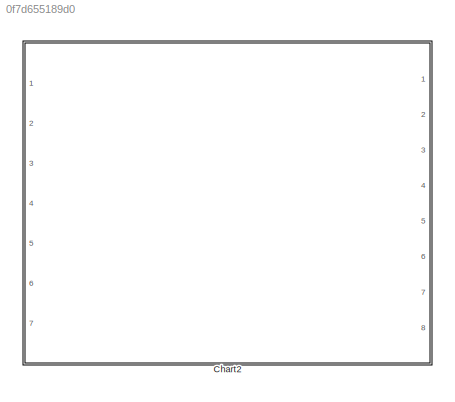
MODEL slx_0f7d655189d0
KIND model
CONFIG AbsTol = auto
CONFIG EnableMultiTasking = off
CONFIG FixedStep = timing.T_optiTask
CONFIG InitFcn = iiwa_joint_trajectoryfollowingcontrol_rigid_parameters;
CONFIG MaxStep = auto
CONFIG MinStep = auto
CONFIG RelTol = 1e-3
CONFIG SampleTimeConstraint = Unconstrained
CONFIG Solver = FixedStepDiscrete
CONFIG SolverName = FixedStepDiscrete
CONFIG StartTime = 0.0
CONFIG StopTime = 10.0
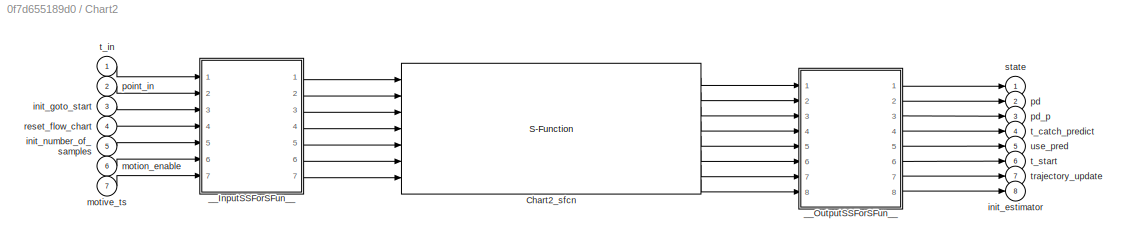
BLOCK [SubSystem] Chart2
  Ports = [7, 8]
  RequestExecContextInheritance = off
BLOCK [S-Function] Chart2/Chart2_sfcn
  CopyFcn = if ~strcmp(get_param(gcb,'Linkstatus'),'none') && ...\n~strcmp(get_param(gcb,'Linkstatus'),'implicit')      \n  set_param(gcb,'LinkStatus','none');                \nend
  EnableBusSupport = off
  FunctionName = Chart2_sf
  Ports = [7, 8]
  SFcnIsStateOwnerBlock = off
  SFunctionDeploymentMode = off
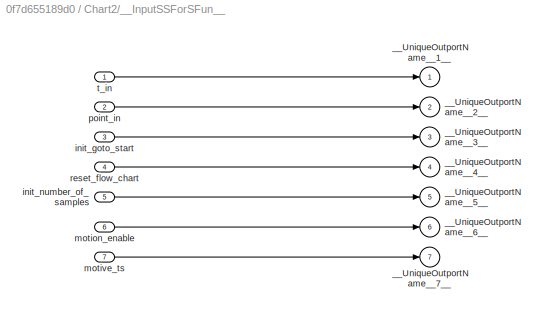
BLOCK [SubSystem] Chart2/__InputSSForSFun__
  PermitHierarchicalResolution = ExplicitOnly
  Ports = [7, 7]
  RequestExecContextInheritance = off
BLOCK [Outport] Chart2/__InputSSForSFun__/__UniqueOutportName__1__
  IconDisplay = Port number
BLOCK [Outport] Chart2/__InputSSForSFun__/__UniqueOutportName__2__
  IconDisplay = Port number
  Port = 2
BLOCK [Outport] Chart2/__InputSSForSFun__/__UniqueOutportName__3__
  IconDisplay = Port number
  Port = 3
BLOCK [Outport] Chart2/__InputSSForSFun__/__UniqueOutportName__4__
  IconDisplay = Port number
  Port = 4
BLOCK [Outport] Chart2/__InputSSForSFun__/__UniqueOutportName__5__
  IconDisplay = Port number
  Port = 5
BLOCK [Outport] Chart2/__InputSSForSFun__/__UniqueOutportName__6__
  IconDisplay = Port number
  Port = 6
BLOCK [Outport] Chart2/__InputSSForSFun__/__UniqueOutportName__7__
  IconDisplay = Port number
  Port = 7
BLOCK [Inport] Chart2/__InputSSForSFun__/init_goto_start
  IconDisplay = Port number
  Port = 3
BLOCK [Inport] Chart2/__InputSSForSFun__/init_number_of_samples
  IconDisplay = Port number
  Port = 5
BLOCK [Inport] Chart2/__InputSSForSFun__/motion_enable
  IconDisplay = Port number
  Port = 6
BLOCK [Inport] Chart2/__InputSSForSFun__/motive_ts
  IconDisplay = Port number
  Port = 7
BLOCK [Inport] Chart2/__InputSSForSFun__/point_in
  IconDisplay = Port number
  Port = 2
BLOCK [Inport] Chart2/__InputSSForSFun__/reset_flow_chart
  IconDisplay = Port number
  Port = 4
BLOCK [Inport] Chart2/__InputSSForSFun__/t_in
  IconDisplay = Port number
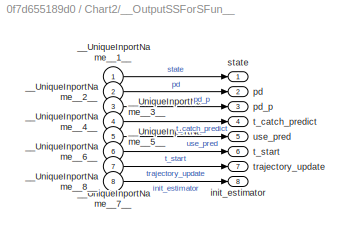
BLOCK [SubSystem] Chart2/__OutputSSForSFun__
  PermitHierarchicalResolution = ExplicitOnly
  Ports = [8, 8]
  RequestExecContextInheritance = off
BLOCK [Inport] Chart2/__OutputSSForSFun__/__UniqueInportName__1__
  IconDisplay = Port number
BLOCK [Inport] Chart2/__OutputSSForSFun__/__UniqueInportName__2__
  IconDisplay = Port number
  Port = 2
BLOCK [Inport] Chart2/__OutputSSForSFun__/__UniqueInportName__3__
  IconDisplay = Port number
  Port = 3
BLOCK [Inport] Chart2/__OutputSSForSFun__/__UniqueInportName__4__
  IconDisplay = Port number
  Port = 4
BLOCK [Inport] Chart2/__OutputSSForSFun__/__UniqueInportName__5__
  IconDisplay = Port number
  Port = 5
BLOCK [Inport] Chart2/__OutputSSForSFun__/__UniqueInportName__6__
  IconDisplay = Port number
  Port = 6
BLOCK [Inport] Chart2/__OutputSSForSFun__/__UniqueInportName__7__
  IconDisplay = Port number
  Port = 7
BLOCK [Inport] Chart2/__OutputSSForSFun__/__UniqueInportName__8__
  IconDisplay = Port number
  Port = 8
BLOCK [Outport] Chart2/__OutputSSForSFun__/init_estimator
  IconDisplay = Port number
  Port = 8
BLOCK [Outport] Chart2/__OutputSSForSFun__/pd
  IconDisplay = Port number
  Port = 2
  VectorParamsAs1DForOutWhenUnconnected = on
BLOCK [Outport] Chart2/__OutputSSForSFun__/pd_p
  IconDisplay = Port number
  Port = 3
  VectorParamsAs1DForOutWhenUnconnected = on
BLOCK [Outport] Chart2/__OutputSSForSFun__/state
  IconDisplay = Port number
  VectorParamsAs1DForOutWhenUnconnected = on
BLOCK [Outport] Chart2/__OutputSSForSFun__/t_catch_predict
  IconDisplay = Port number
  Port = 4
  VectorParamsAs1DForOutWhenUnconnected = on
BLOCK [Outport] Chart2/__OutputSSForSFun__/t_start
  IconDisplay = Port number
  Port = 6
  VectorParamsAs1DForOutWhenUnconnected = on
BLOCK [Outport] Chart2/__OutputSSForSFun__/trajectory_update
  IconDisplay = Port number
  Port = 7
  VectorParamsAs1DForOutWhenUnconnected = on
BLOCK [Outport] Chart2/__OutputSSForSFun__/use_pred
  IconDisplay = Port number
  Port = 5
  VectorParamsAs1DForOutWhenUnconnected = on
BLOCK [Outport] Chart2/init_estimator
  IconDisplay = Port number
  Port = 8
BLOCK [Inport] Chart2/init_goto_start
  IconDisplay = Port number
  Port = 3
BLOCK [Inport] Chart2/init_number_of_samples
  IconDisplay = Port number
  Port = 5
BLOCK [Inport] Chart2/motion_enable
  IconDisplay = Port number
  Port = 6
BLOCK [Inport] Chart2/motive_ts
  IconDisplay = Port number
  Port = 7
BLOCK [Outport] Chart2/pd
  IconDisplay = Port number
  Port = 2
  VectorParamsAs1DForOutWhenUnconnected = on
BLOCK [Outport] Chart2/pd_p
  IconDisplay = Port number
  Port = 3
  VectorParamsAs1DForOutWhenUnconnected = on
BLOCK [Inport] Chart2/point_in
  IconDisplay = Port number
  Port = 2
BLOCK [Inport] Chart2/reset_flow_chart
  IconDisplay = Port number
  Port = 4
BLOCK [Outport] Chart2/state
  IconDisplay = Port number
  VectorParamsAs1DForOutWhenUnconnected = on
BLOCK [Outport] Chart2/t_catch_predict
  IconDisplay = Port number
  Port = 4
  VectorParamsAs1DForOutWhenUnconnected = on
BLOCK [Inport] Chart2/t_in
  IconDisplay = Port number
BLOCK [Outport] Chart2/t_start
  IconDisplay = Port number
  Port = 6
  VectorParamsAs1DForOutWhenUnconnected = on
BLOCK [Outport] Chart2/trajectory_update
  IconDisplay = Port number
  Port = 7
  VectorParamsAs1DForOutWhenUnconnected = on
BLOCK [Outport] Chart2/use_pred
  IconDisplay = Port number
  Port = 5
  VectorParamsAs1DForOutWhenUnconnected = on
LINE Chart2/Chart2_sfcn:1 -> Chart2/__OutputSSForSFun__:1
LINE Chart2/Chart2_sfcn:2 -> Chart2/__OutputSSForSFun__:2
LINE Chart2/Chart2_sfcn:3 -> Chart2/__OutputSSForSFun__:3
LINE Chart2/Chart2_sfcn:4 -> Chart2/__OutputSSForSFun__:4
LINE Chart2/Chart2_sfcn:5 -> Chart2/__OutputSSForSFun__:5
LINE Chart2/Chart2_sfcn:6 -> Chart2/__OutputSSForSFun__:6
LINE Chart2/Chart2_sfcn:7 -> Chart2/__OutputSSForSFun__:7
LINE Chart2/Chart2_sfcn:8 -> Chart2/__OutputSSForSFun__:8
LINE Chart2/__InputSSForSFun__/init_goto_start:1 -> Chart2/__InputSSForSFun__/__UniqueOutportName__3__:1
LINE Chart2/__InputSSForSFun__/init_number_of_samples:1 -> Chart2/__InputSSForSFun__/__UniqueOutportName__5__:1
LINE Chart2/__InputSSForSFun__/motion_enable:1 -> Chart2/__InputSSForSFun__/__UniqueOutportName__6__:1
LINE Chart2/__InputSSForSFun__/motive_ts:1 -> Chart2/__InputSSForSFun__/__UniqueOutportName__7__:1
LINE Chart2/__InputSSForSFun__/point_in:1 -> Chart2/__InputSSForSFun__/__UniqueOutportName__2__:1
LINE Chart2/__InputSSForSFun__/reset_flow_chart:1 -> Chart2/__InputSSForSFun__/__UniqueOutportName__4__:1
LINE Chart2/__InputSSForSFun__/t_in:1 -> Chart2/__InputSSForSFun__/__UniqueOutportName__1__:1
LINE Chart2/__InputSSForSFun__:1 -> Chart2/Chart2_sfcn:1
LINE Chart2/__InputSSForSFun__:2 -> Chart2/Chart2_sfcn:2
LINE Chart2/__InputSSForSFun__:3 -> Chart2/Chart2_sfcn:3
LINE Chart2/__InputSSForSFun__:4 -> Chart2/Chart2_sfcn:4
LINE Chart2/__InputSSForSFun__:5 -> Chart2/Chart2_sfcn:5
LINE Chart2/__InputSSForSFun__:6 -> Chart2/Chart2_sfcn:6
LINE Chart2/__InputSSForSFun__:7 -> Chart2/Chart2_sfcn:7
LINE Chart2/__OutputSSForSFun__/__UniqueInportName__1__:1 -> Chart2/__OutputSSForSFun__/state:1
LINE Chart2/__OutputSSForSFun__/__UniqueInportName__2__:1 -> Chart2/__OutputSSForSFun__/pd:1
LINE Chart2/__OutputSSForSFun__/__UniqueInportName__3__:1 -> Chart2/__OutputSSForSFun__/pd_p:1
LINE Chart2/__OutputSSForSFun__/__UniqueInportName__4__:1 -> Chart2/__OutputSSForSFun__/t_catch_predict:1
LINE Chart2/__OutputSSForSFun__/__UniqueInportName__5__:1 -> Chart2/__OutputSSForSFun__/use_pred:1
LINE Chart2/__OutputSSForSFun__/__UniqueInportName__6__:1 -> Chart2/__OutputSSForSFun__/t_start:1
LINE Chart2/__OutputSSForSFun__/__UniqueInportName__7__:1 -> Chart2/__OutputSSForSFun__/trajectory_update:1
LINE Chart2/__OutputSSForSFun__/__UniqueInportName__8__:1 -> Chart2/__OutputSSForSFun__/init_estimator:1
LINE Chart2/__OutputSSForSFun__:1 -> Chart2/state:1
LINE Chart2/__OutputSSForSFun__:2 -> Chart2/pd:1
LINE Chart2/__OutputSSForSFun__:3 -> Chart2/pd_p:1
LINE Chart2/__OutputSSForSFun__:4 -> Chart2/t_catch_predict:1
LINE Chart2/__OutputSSForSFun__:5 -> Chart2/use_pred:1
LINE Chart2/__OutputSSForSFun__:6 -> Chart2/t_start:1
LINE Chart2/__OutputSSForSFun__:7 -> Chart2/trajectory_update:1
LINE Chart2/__OutputSSForSFun__:8 -> Chart2/init_estimator:1
LINE Chart2/init_goto_start:1 -> Chart2/__InputSSForSFun__:3
LINE Chart2/init_number_of_samples:1 -> Chart2/__InputSSForSFun__:5
LINE Chart2/motion_enable:1 -> Chart2/__InputSSForSFun__:6
LINE Chart2/motive_ts:1 -> Chart2/__InputSSForSFun__:7
LINE Chart2/point_in:1 -> Chart2/__InputSSForSFun__:2
LINE Chart2/reset_flow_chart:1 -> Chart2/__InputSSForSFun__:4
LINE Chart2/t_in:1 -> Chart2/__InputSSForSFun__:1
